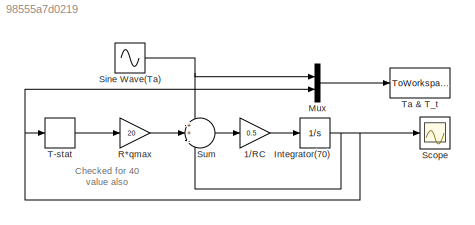
MODEL slx_98555a7d0219
KIND model
CONFIG AbsTol = auto
CONFIG FixedStep = auto
CONFIG MaxStep = auto
CONFIG MinStep = auto
CONFIG RelTol = 1e-3
CONFIG SampleTimeConstraint = Unconstrained
CONFIG Solver = ode45
CONFIG SolverMode = Auto
CONFIG SolverName = ode45
CONFIG StartTime = 0.0
CONFIG StopTime = 24
BLOCK [Gain] 1//RC
  Gain = 0.5
  OutDataTypeStr = Inherit: Inherit via internal rule
  ParamDataTypeStr = Inherit: Inherit via internal rule
  SaturateOnIntegerOverflow = off
BLOCK [Integrator] Integrator(70)
  InitialCondition = 70
  Ports = [1, 1]
BLOCK [Mux] Mux
  DisplayOption = bar
  Inputs = 2
  Ports = [2, 1]
BLOCK [Gain] R*qmax
  Gain = 20
  OutDataTypeStr = Inherit: Inherit via internal rule
  ParamDataTypeStr = Inherit: Inherit via internal rule
  SaturateOnIntegerOverflow = off
BLOCK [Scope] Scope
  Floating = off
  NumInputPorts = 1
  Ports = [1]
BLOCK [Sin] Sine Wave(Ta)
  Amplitude = 10
  Bias = 50
  Frequency = pi/12
  Ports = [0, 1]
  SampleTime = 0
BLOCK [Sum] Sum
  IconShape = round
  InputSameDT = off
  Inputs = ++-
  OutDataTypeStr = Inherit: Inherit via internal rule
  Ports = [3, 1]
  SaturateOnIntegerOverflow = off
BLOCK [Relay] T-stat
  OffOutputValue = 1
  OffSwitchValue = 69
  OnOutputValue = 0
  OnSwitchValue = 71
BLOCK [ToWorkspace] Ta & T_t
  FixptAsFi = on
  MaxDataPoints = inf
  Ports = [1]
  SampleTime = -1
  Save2DSignal = 3-D array (concatenate along third dimension)
  VariableName = T
ANNOTATION (root): Checked for 40 value also
LINE 1//RC:1 -> Integrator(70):1
NET Integrator(70):1 -> Mux:2, Scope:1, Sum:3, T-stat:1
LINE Mux:1 -> Ta & T_t:1
LINE R*qmax:1 -> Sum:2
NET Sine Wave(Ta):1 -> Mux:1, Sum:1
LINE Sum:1 -> 1//RC:1
LINE T-stat:1 -> R*qmax:1
note: NET lines group one-source signal fan-out (src -> all destinations, sorted); 1:1 wires keep LINE
